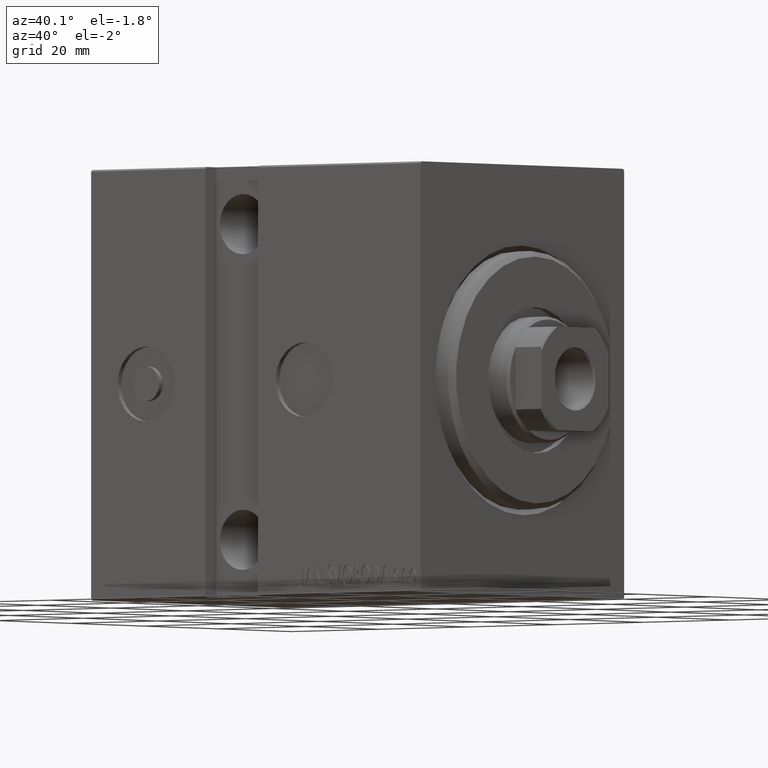
[diagram: clean part render]
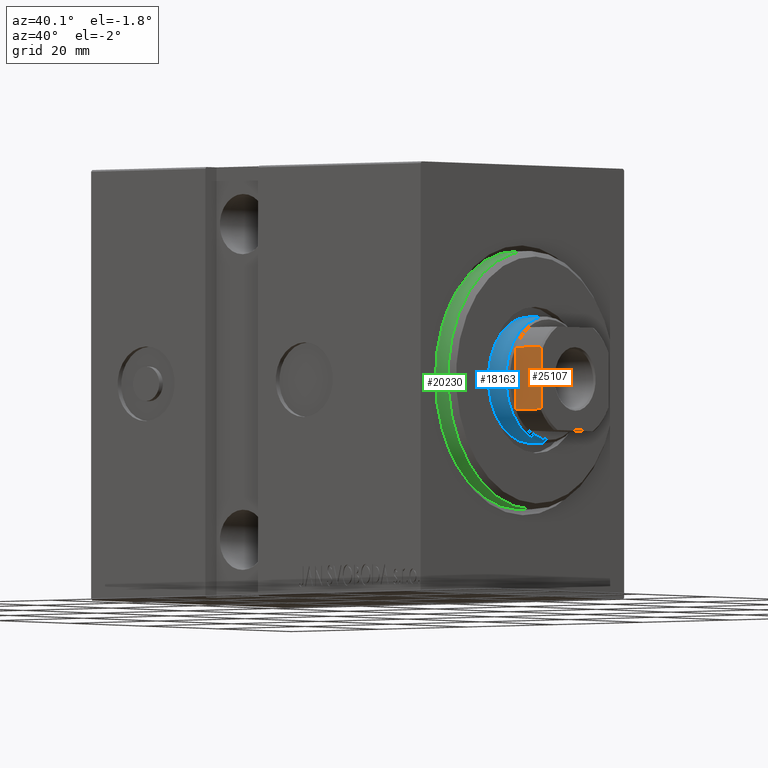
[diagram: same view with three faces highlighted in distinct colors, each labeled with its STEP entity id]
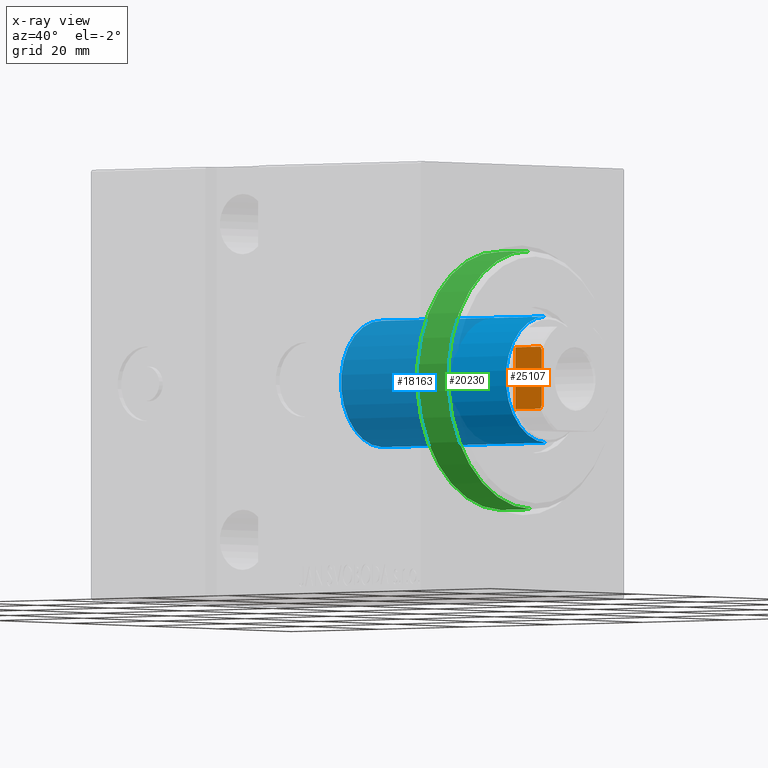
[diagram: x-ray of the same camera — body ghosted, the three highlighted faces saturated]
A machine part, auxiliary view with three faces highlighted in distinct colors.
The next image is the same camera in x-ray (body ghosted, the three faces saturated) — at least one of them is partly hidden behind the body in this view.
Their STEP definitions:

[orange] entity #25107 — the highlighted planar face has unit normal (0, 1, 0).
#163 = DIRECTION ( 'NONE',  ( 1.000000000000000000, 0.000000000000000000, 0.000000000000000000 ) ) ;
#303 = DIRECTION ( 'NONE',  ( 0.000000000000000000, 1.000000000000000000, 0.000000000000000000 ) ) ;
#1549 = CARTESIAN_POINT ( 'NONE',  ( -8.999999999999998224, -9.000000000000001776, 77.00000000000001421 ) ) ;
#1761 = CARTESIAN_POINT ( 'NONE',  ( -5.408326913195988794, -8.999999999999998224, -0.001000000000001000089 ) ) ;
#1862 = LINE ( 'NONE', #28071, #37697 ) ;
#2961 = VECTOR ( 'NONE', #17844, 1000.000000000000000 ) ;
#3250 = EDGE_CURVE ( 'NONE', #34336, #41582, #37434, .T. ) ;
#3913 = CARTESIAN_POINT ( 'NONE',  ( 4.800000000000006928, -9.000000000000001776, 77.00000000000001421 ) ) ;
#4173 = ORIENTED_EDGE ( 'NONE', *, *, #7355, .T. ) ;
#5436 = CARTESIAN_POINT ( 'NONE',  ( -5.207299490555470811, -9.000000000000001776, 76.80354495430069051 ) ) ;
#7355 = EDGE_CURVE ( 'NONE', #20724, #41582, #22710, .T. ) ;
#7441 = ORIENTED_EDGE ( 'NONE', *, *, #32526, .F. ) ;
#8062 = ORIENTED_EDGE ( 'NONE', *, *, #32894, .T. ) ;
#8583 = EDGE_CURVE ( 'NONE', #34336, #27719, #16553, .T. ) ;
#9757 = CARTESIAN_POINT ( 'NONE',  ( -8.999999999999998224, -9.000000000000001776, 77.00000000000001421 ) ) ;
#11073 = CARTESIAN_POINT ( 'NONE',  ( -5.408326913195988794, -8.999999999999998224, 76.70000000000001705 ) ) ;
#11450 = CARTESIAN_POINT ( 'NONE',  ( -5.408326913195988794, -8.999999999999998224, 76.70000000000001705 ) ) ;
#12691 = EDGE_CURVE ( 'NONE', #36675, #20724, #1862, .T. ) ;
#13204 = AXIS2_PLACEMENT_3D ( 'NONE', #9757, #303, #15978 ) ;
#13354 = CARTESIAN_POINT ( 'NONE',  ( 5.207299490555477028, -8.999999999999998224, 76.80354495430069051 ) ) ;
#15978 = DIRECTION ( 'NONE',  ( 0.000000000000000000, -0.000000000000000000, 1.000000000000000000 ) ) ;
#16553 = B_SPLINE_CURVE_WITH_KNOTS ( 'NONE', 3,
 ( #21734, #18090, #5436, #11450 ),
 .UNSPECIFIED., .F., .F.,
 ( 4, 4 ),
 ( 0.000000000000000000, 0.0006782784334759310802 ),
 .UNSPECIFIED. ) ;
#16701 = LINE ( 'NONE', #29605, #25588 ) ;
#16711 = CARTESIAN_POINT ( 'NONE',  ( 5.408326913195988794, -8.999999999999998224, 71.00000000000002842 ) ) ;
#16827 = ORIENTED_EDGE ( 'NONE', *, *, #8583, .T. ) ;
#17844 = DIRECTION ( 'NONE',  ( -0.000000000000000000, -0.000000000000000000, 1.000000000000000000 ) ) ;
#18090 = CARTESIAN_POINT ( 'NONE',  ( -5.004607318780298186, -9.000000000000001776, 76.90371420292693472 ) ) ;
#18492 = DIRECTION ( 'NONE',  ( 1.000000000000000000, 0.000000000000000000, 0.000000000000000000 ) ) ;
#20724 = VERTEX_POINT ( 'NONE', #37747 ) ;
#21734 = CARTESIAN_POINT ( 'NONE',  ( -4.799999999999995381, -9.000000000000001776, 77.00000000000001421 ) ) ;
#22202 = PLANE ( 'NONE',  #13204 ) ;
#22710 = B_SPLINE_CURVE_WITH_KNOTS ( 'NONE', 3,
 ( #30322, #13354, #36776, #3913 ),
 .UNSPECIFIED., .F., .F.,
 ( 4, 4 ),
 ( 0.000000000000000000, 0.0006782784334759201297 ),
 .UNSPECIFIED. ) ;
#25107 = ADVANCED_FACE ( 'NONE', ( #38565 ), #22202, .F. ) ;
#25588 = VECTOR ( 'NONE', #163, 1000.000000000000000 ) ;
#25645 = CARTESIAN_POINT ( 'NONE',  ( -4.799999999999995381, -9.000000000000001776, 77.00000000000001421 ) ) ;
#25869 = EDGE_LOOP ( 'NONE', ( #40918, #4173, #26147, #16827, #7441, #8062 ) ) ;
#26147 = ORIENTED_EDGE ( 'NONE', *, *, #3250, .F. ) ;
#26664 = CARTESIAN_POINT ( 'NONE',  ( -5.408326913195988794, -8.999999999999998224, 71.00000000000002842 ) ) ;
#27460 = VERTEX_POINT ( 'NONE', #26664 ) ;
#27719 = VERTEX_POINT ( 'NONE', #11073 ) ;
#28071 = CARTESIAN_POINT ( 'NONE',  ( 5.408326913195988794, -8.999999999999998224, -0.001000000000001000089 ) ) ;
#29605 = CARTESIAN_POINT ( 'NONE',  ( -8.999999999999998224, -9.000000000000001776, 71.00000000000001421 ) ) ;
#30322 = CARTESIAN_POINT ( 'NONE',  ( 5.408326913195988794, -8.999999999999998224, 76.70000000000001705 ) ) ;
#30751 = CARTESIAN_POINT ( 'NONE',  ( 4.800000000000006928, -9.000000000000001776, 77.00000000000001421 ) ) ;
#32526 = EDGE_CURVE ( 'NONE', #27460, #27719, #41715, .T. ) ;
#32894 = EDGE_CURVE ( 'NONE', #27460, #36675, #16701, .T. ) ;
#33919 = VECTOR ( 'NONE', #18492, 1000.000000000000000 ) ;
#34336 = VERTEX_POINT ( 'NONE', #25645 ) ;
#36675 = VERTEX_POINT ( 'NONE', #16711 ) ;
#36776 = CARTESIAN_POINT ( 'NONE',  ( 5.004607318780310621, -9.000000000000001776, 76.90371420292693472 ) ) ;
#37434 = LINE ( 'NONE', #1549, #33919 ) ;
#37697 = VECTOR ( 'NONE', #37744, 1000.000000000000000 ) ;
#37744 = DIRECTION ( 'NONE',  ( -0.000000000000000000, -0.000000000000000000, 1.000000000000000000 ) ) ;
#37747 = CARTESIAN_POINT ( 'NONE',  ( 5.408326913195988794, -8.999999999999998224, 76.70000000000001705 ) ) ;
#38565 = FACE_OUTER_BOUND ( 'NONE', #25869, .T. ) ;
#40918 = ORIENTED_EDGE ( 'NONE', *, *, #12691, .T. ) ;
#41582 = VERTEX_POINT ( 'NONE', #30751 ) ;
#41715 = LINE ( 'NONE', #1761, #2961 ) ;

[blue] entity #18163 — the highlighted cylindrical surface (partial cylindrical patch) has radius 11 mm, axis along (-1, -0, 0).
#231 = ORIENTED_EDGE ( 'NONE', *, *, #35793, .T. ) ;
#507 = EDGE_CURVE ( 'NONE', #19436, #16631, #30355, .T. ) ;
#909 = FACE_OUTER_BOUND ( 'NONE', #13982, .T. ) ;
#940 = AXIS2_PLACEMENT_3D ( 'NONE', #14973, #18607, #34954 ) ;
#1873 = CARTESIAN_POINT ( 'NONE',  ( -11.00000000000000000, 0.000000000000000000, 71.00000000000001421 ) ) ;
#2763 = CARTESIAN_POINT ( 'NONE',  ( 11.00000000000000000, 1.347111479062088405E-15, 71.00000000000001421 ) ) ;
#3028 = VECTOR ( 'NONE', #14963, 1000.000000000000000 ) ;
#7689 = VECTOR ( 'NONE', #35414, 1000.000000000000000 ) ;
#8765 = CARTESIAN_POINT ( 'NONE',  ( -11.00000000000000000, 0.000000000000000000, 70.50000000000002842 ) ) ;
#10371 = CARTESIAN_POINT ( 'NONE',  ( 0.000000000000000000, 0.000000000000000000, 71.00000000000001421 ) ) ;
#11022 = VERTEX_POINT ( 'NONE', #35611 ) ;
#13726 = EDGE_CURVE ( 'NONE', #11022, #42111, #19852, .T. ) ;
#13982 = EDGE_LOOP ( 'NONE', ( #18025, #33389, #231, #34065 ) ) ;
#14003 = DIRECTION ( 'NONE',  ( -0.000000000000000000, -0.000000000000000000, -1.000000000000000000 ) ) ;
#14058 = DIRECTION ( 'NONE',  ( 1.000000000000000000, 0.000000000000000000, 0.000000000000000000 ) ) ;
#14963 = DIRECTION ( 'NONE',  ( -0.000000000000000000, -0.000000000000000000, -1.000000000000000000 ) ) ;
#14973 = CARTESIAN_POINT ( 'NONE',  ( 0.000000000000000000, 0.000000000000000000, 33.00000000000000000 ) ) ;
#16631 = VERTEX_POINT ( 'NONE', #30438 ) ;
#17220 = DIRECTION ( 'NONE',  ( -1.000000000000000000, 0.000000000000000000, 0.000000000000000000 ) ) ;
#18025 = ORIENTED_EDGE ( 'NONE', *, *, #23633, .F. ) ;
#18163 = ADVANCED_FACE ( 'NONE', ( #909 ), #39831, .T. ) ;
#18607 = DIRECTION ( 'NONE',  ( 0.000000000000000000, 0.000000000000000000, 1.000000000000000000 ) ) ;
#19436 = VERTEX_POINT ( 'NONE', #35731 ) ;
#19852 = CIRCLE ( 'NONE', #39797, 11.00000000000000000 ) ;
#23633 = EDGE_CURVE ( 'NONE', #11022, #16631, #31978, .T. ) ;
#24572 = CARTESIAN_POINT ( 'NONE',  ( 0.000000000000000000, 0.000000000000000000, 70.50000000000002842 ) ) ;
#24701 = AXIS2_PLACEMENT_3D ( 'NONE', #10371, #14003, #17220 ) ;
#30355 = CIRCLE ( 'NONE', #940, 11.00000000000000000 ) ;
#30438 = CARTESIAN_POINT ( 'NONE',  ( 11.00000000000000000, 1.347111479062088405E-15, 33.00000000000000000 ) ) ;
#31309 = LINE ( 'NONE', #1873, #3028 ) ;
#31978 = LINE ( 'NONE', #2763, #7689 ) ;
#33389 = ORIENTED_EDGE ( 'NONE', *, *, #13726, .T. ) ;
#34065 = ORIENTED_EDGE ( 'NONE', *, *, #507, .T. ) ;
#34954 = DIRECTION ( 'NONE',  ( 1.000000000000000000, 0.000000000000000000, 0.000000000000000000 ) ) ;
#35414 = DIRECTION ( 'NONE',  ( -0.000000000000000000, -0.000000000000000000, -1.000000000000000000 ) ) ;
#35611 = CARTESIAN_POINT ( 'NONE',  ( 11.00000000000000000, 1.347111479062088405E-15, 70.50000000000002842 ) ) ;
#35731 = CARTESIAN_POINT ( 'NONE',  ( -11.00000000000000000, 0.000000000000000000, 33.00000000000000000 ) ) ;
#35793 = EDGE_CURVE ( 'NONE', #42111, #19436, #31309, .T. ) ;
#37268 = DIRECTION ( 'NONE',  ( 0.000000000000000000, 0.000000000000000000, -1.000000000000000000 ) ) ;
#39797 = AXIS2_PLACEMENT_3D ( 'NONE', #24572, #37268, #14058 ) ;
#39831 = CYLINDRICAL_SURFACE ( 'NONE', #24701, 11.00000000000000000 ) ;
#42111 = VERTEX_POINT ( 'NONE', #8765 ) ;

[green] entity #20230 — the highlighted cylindrical surface (partial cylindrical patch) has radius 22.5 mm, axis along (-1, -0, -0).
#232 = EDGE_LOOP ( 'NONE', ( #40949, #7995, #39634, #27678 ) ) ;
#525 = CIRCLE ( 'NONE', #18356, 22.50000000000000355 ) ;
#2076 = DIRECTION ( 'NONE',  ( -1.000000000000000000, -0.000000000000000000, -0.000000000000000000 ) ) ;
#2649 = CARTESIAN_POINT ( 'NONE',  ( -5.000000000000000000, 0.000000000000000000, 22.50000000000000355 ) ) ;
#4650 = VERTEX_POINT ( 'NONE', #28511 ) ;
#4710 = FACE_OUTER_BOUND ( 'NONE', #232, .T. ) ;
#7817 = CARTESIAN_POINT ( 'NONE',  ( -5.000000000000000000, 0.000000000000000000, 0.000000000000000000 ) ) ;
#7995 = ORIENTED_EDGE ( 'NONE', *, *, #29988, .T. ) ;
#8940 = VECTOR ( 'NONE', #2076, 1000.000000000000000 ) ;
#10151 = CYLINDRICAL_SURFACE ( 'NONE', #13080, 22.50000000000000355 ) ;
#10321 = EDGE_CURVE ( 'NONE', #39329, #21055, #42234, .T. ) ;
#11154 = DIRECTION ( 'NONE',  ( 0.000000000000000000, 0.000000000000000000, 1.000000000000000000 ) ) ;
#13080 = AXIS2_PLACEMENT_3D ( 'NONE', #19589, #36148, #11154 ) ;
#13907 = AXIS2_PLACEMENT_3D ( 'NONE', #7817, #27577, #33818 ) ;
#18356 = AXIS2_PLACEMENT_3D ( 'NONE', #34674, #21961, #35090 ) ;
#19020 = EDGE_CURVE ( 'NONE', #4650, #34414, #35359, .T. ) ;
#19210 = DIRECTION ( 'NONE',  ( -1.000000000000000000, -0.000000000000000000, -0.000000000000000000 ) ) ;
#19589 = CARTESIAN_POINT ( 'NONE',  ( 3.000000000000000000, 0.000000000000000000, 0.000000000000000000 ) ) ;
#19607 = CARTESIAN_POINT ( 'NONE',  ( -5.000000000000000000, 2.755455298081545172E-15, -22.50000000000000355 ) ) ;
#20230 = ADVANCED_FACE ( 'NONE', ( #4710 ), #10151, .T. ) ;
#21055 = VERTEX_POINT ( 'NONE', #2649 ) ;
#21961 = DIRECTION ( 'NONE',  ( -1.000000000000000000, 0.000000000000000000, 0.000000000000000000 ) ) ;
#26176 = EDGE_CURVE ( 'NONE', #21055, #34414, #26280, .T. ) ;
#26280 = CIRCLE ( 'NONE', #13907, 22.50000000000000355 ) ;
#27577 = DIRECTION ( 'NONE',  ( 1.000000000000000000, 0.000000000000000000, 0.000000000000000000 ) ) ;
#27678 = ORIENTED_EDGE ( 'NONE', *, *, #26176, .T. ) ;
#28511 = CARTESIAN_POINT ( 'NONE',  ( 1.999999999999978462, 2.755455298081545172E-15, -22.50000000000000355 ) ) ;
#29988 = EDGE_CURVE ( 'NONE', #4650, #39329, #525, .T. ) ;
#32138 = CARTESIAN_POINT ( 'NONE',  ( 3.000000000000000000, 2.755455298081545172E-15, -22.50000000000000355 ) ) ;
#33818 = DIRECTION ( 'NONE',  ( 0.000000000000000000, 0.000000000000000000, -1.000000000000000000 ) ) ;
#34414 = VERTEX_POINT ( 'NONE', #19607 ) ;
#34674 = CARTESIAN_POINT ( 'NONE',  ( 1.999999999999978462, 0.000000000000000000, 0.000000000000000000 ) ) ;
#35090 = DIRECTION ( 'NONE',  ( 0.000000000000000000, 0.000000000000000000, -1.000000000000000000 ) ) ;
#35359 = LINE ( 'NONE', #32138, #8940 ) ;
#35765 = CARTESIAN_POINT ( 'NONE',  ( 3.000000000000000000, 0.000000000000000000, 22.50000000000000355 ) ) ;
#36148 = DIRECTION ( 'NONE',  ( -1.000000000000000000, -0.000000000000000000, -0.000000000000000000 ) ) ;
#38343 = VECTOR ( 'NONE', #19210, 1000.000000000000000 ) ;
#39329 = VERTEX_POINT ( 'NONE', #42231 ) ;
#39634 = ORIENTED_EDGE ( 'NONE', *, *, #10321, .T. ) ;
#40949 = ORIENTED_EDGE ( 'NONE', *, *, #19020, .F. ) ;
#42231 = CARTESIAN_POINT ( 'NONE',  ( 1.999999999999978462, 0.000000000000000000, 22.50000000000000355 ) ) ;
#42234 = LINE ( 'NONE', #35765, #38343 ) ;